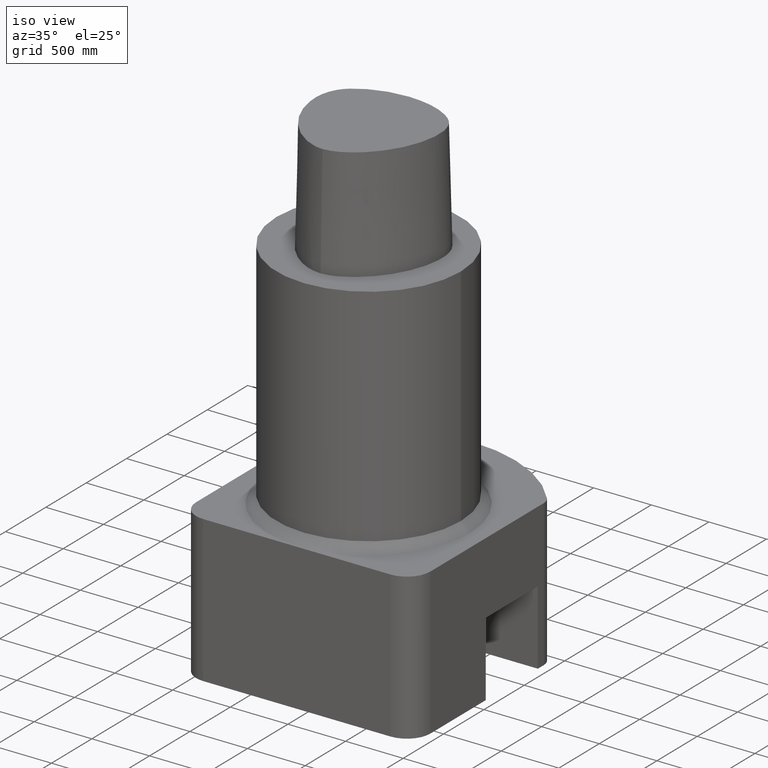
[diagram: clean part render]
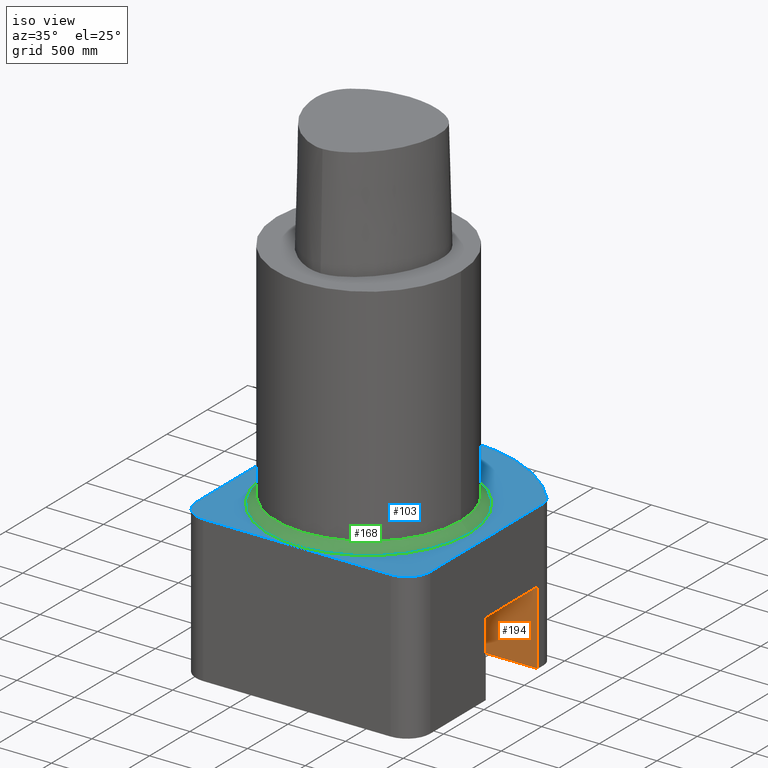
[diagram: same view with three faces highlighted in distinct colors, each labeled with its STEP entity id]
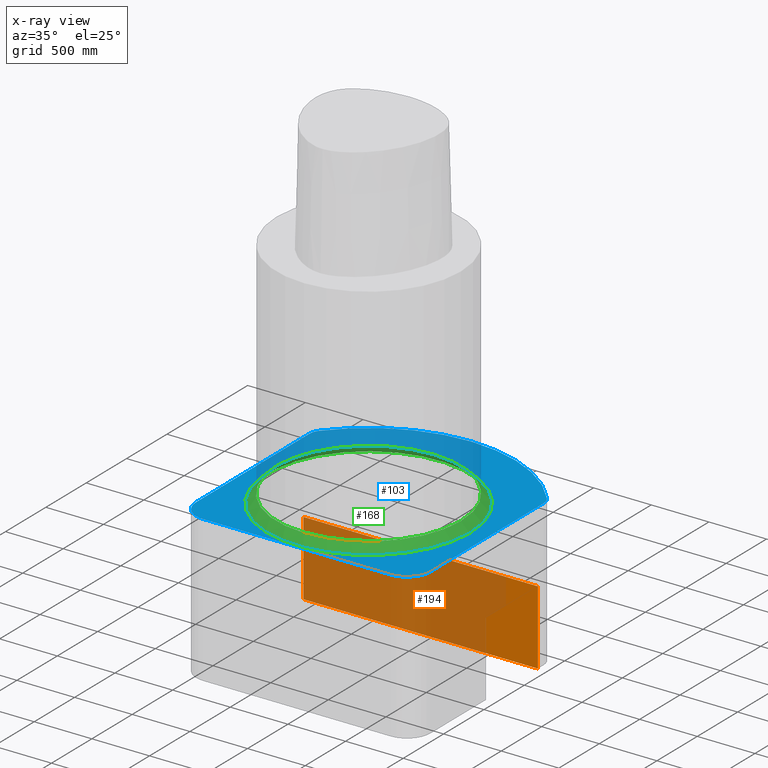
[diagram: x-ray of the same camera — body ghosted, the three highlighted faces saturated]
A machine part, iso view with three faces highlighted in distinct colors.
The next image is the same camera in x-ray (body ghosted, the three faces saturated) — at least one of them is partly hidden behind the body in this view.
Their STEP definitions:

[orange] entity #194 — the highlighted planar face has unit normal (-0, 1, -0).
#144=EDGE_CURVE('Unnamed[1]',#291,#348,#349,.T.);
#154=EDGE_CURVE('Unnamed[1]',#362,#291,#363,.T.);
#194=ADVANCED_FACE('Unnamed[1]',(#415),#416,.F.);
#222=EDGE_CURVE('Unnamed[1]',#348,#327,#451,.T.);
#232=EDGE_CURVE('Unnamed[1]',#327,#362,#461,.T.);
#291=VERTEX_POINT('',#522);
#327=VERTEX_POINT('',#576);
#348=VERTEX_POINT('',#607);
#349=LINE('',#608,#609);
#362=VERTEX_POINT('',#627);
#363=LINE('',#628,#629);
#415=FACE_OUTER_BOUND('',#732,.T.);
#416=PLANE('',#733);
#451=LINE('',#854,#855);
#461=LINE('',#903,#904);
#522=CARTESIAN_POINT('',(39.9999999999996,25.4,-130.0));
#576=CARTESIAN_POINT('',(-40.0,25.3999999999998,-104.6));
#607=CARTESIAN_POINT('',(-40.0,25.3999999999998,-130.0));
#608=CARTESIAN_POINT('',(12.5,25.3999999999999,-130.0));
#609=VECTOR('',#1082,1.0);
#627=CARTESIAN_POINT('',(39.9999999999996,25.4,-104.6));
#628=CARTESIAN_POINT('',(39.9999999999996,25.4,-256.829591219622));
#629=VECTOR('',#1100,1.0);
#732=EDGE_LOOP('',(#1163,#1164,#1165,#1166));
#733=AXIS2_PLACEMENT_3D('',#1167,#1168,#1169);
#854=CARTESIAN_POINT('',(-40.0,25.3999999999998,-256.829591219622));
#855=VECTOR('',#1213,1.0);
#903=CARTESIAN_POINT('',(39.9999999999996,25.4,-104.6));
#904=VECTOR('',#1216,1.0);
#1082=DIRECTION('',(-1.0,-2.65847392316831E-015,-1.22464679914735E-016));
#1100=DIRECTION('',(1.22464679914735E-016,-6.12323399573677E-017,-1.0));
#1163=ORIENTED_EDGE('',*,*,#144,.F.);
#1164=ORIENTED_EDGE('',*,*,#154,.F.);
#1165=ORIENTED_EDGE('',*,*,#232,.F.);
#1166=ORIENTED_EDGE('',*,*,#222,.F.);
#1167=CARTESIAN_POINT('',(-1.91255217457137E-013,25.3999999999999,-256.829591219622));
#1168=DIRECTION('',(-2.65847392316831E-015,1.0,-6.1232339957368E-017));
#1169=DIRECTION('',(-1.0,-2.65847392316831E-015,-1.22464679914735E-016));
#1213=DIRECTION('',(-1.22464679914735E-016,6.12323399573677E-017,1.0));
#1216=DIRECTION('',(1.0,2.65847392316831E-015,1.22464679914735E-016));

[blue] entity #103 — the highlighted planar face has unit normal (-0, 0, 1).
#103=ADVANCED_FACE('Unnamed[1]',(#286,#287),#288,.T.);
#107=EDGE_CURVE('Unnamed[1]',#294,#295,#296,.T.);
#113=EDGE_CURVE('Unnamed[1]',#298,#305,#306,.T.);
#178=EDGE_CURVE('Unnamed[1]',#394,#351,#395,.T.);
#196=EDGE_CURVE('Unnamed[1]',#418,#418,#419,.T.);
#205=EDGE_CURVE('Unnamed[1]',#351,#314,#429,.T.);
#212=EDGE_CURVE('Unnamed[1]',#438,#394,#439,.T.);
#228=EDGE_CURVE('Unnamed[1]',#314,#298,#457,.T.);
#234=EDGE_CURVE('Unnamed[1]',#438,#295,#463,.T.);
#238=EDGE_CURVE('Unnamed[1]',#305,#294,#467,.T.);
#286=FACE_BOUND('',#516,.T.);
#287=FACE_OUTER_BOUND('',#517,.T.);
#288=PLANE('',#518);
#294=VERTEX_POINT('',#527);
#295=VERTEX_POINT('',#528);
#296=CIRCLE('',#529,5.0);
#298=VERTEX_POINT('',#532);
#305=VERTEX_POINT('',#543);
#306=CIRCLE('',#544,8.0);
#314=VERTEX_POINT('',#557);
#351=VERTEX_POINT('',#612);
#394=VERTEX_POINT('',#669);
#395=LINE('',#670,#671);
#418=VERTEX_POINT('',#736);
#419=CIRCLE('',#737,34.5001016151384);
#429=CIRCLE('',#753,8.0);
#438=VERTEX_POINT('',#837);
#439=CIRCLE('',#838,5.0);
#457=LINE('',#881,#882);
#463=CIRCLE('',#907,50.0000000000004);
#467=LINE('',#914,#915);
#516=EDGE_LOOP('',(#1021));
#517=EDGE_LOOP('',(#1022,#1023,#1024,#1025,#1026,#1027,#1028,#1029));
#518=AXIS2_PLACEMENT_3D('',#1030,#1031,#1032);
#527=CARTESIAN_POINT('',(39.9999999999996,28.2842712474614,-80.0));
#528=CARTESIAN_POINT('',(38.8888888888904,31.4269680527325,-80.0));
#529=AXIS2_PLACEMENT_3D('',#1034,#1035,#1036);
#532=CARTESIAN_POINT('',(31.9999999999995,-35.0000000000004,-80.0));
#543=CARTESIAN_POINT('',(39.9999999999995,-27.0000000000003,-80.0));
#544=AXIS2_PLACEMENT_3D('',#1039,#1040,#1041);
#557=CARTESIAN_POINT('',(-32.0000000000009,-35.0000000000005,-80.0));
#612=CARTESIAN_POINT('',(-40.0000000000009,-27.0000000000005,-80.0));
#669=CARTESIAN_POINT('',(-40.0,28.2842712474617,-80.0));
#670=CARTESIAN_POINT('',(-40.0000000000004,0.32106781186599,-80.0));
#671=VECTOR('',#1150,1.0);
#736=CARTESIAN_POINT('',(34.5001016151384,-1.12361530485751E-014,-80.0));
#737=AXIS2_PLACEMENT_3D('',#1170,#1171,#1172);
#753=AXIS2_PLACEMENT_3D('',#1182,#1183,#1184);
#837=CARTESIAN_POINT('',(-38.8888888888895,31.426968052735,-80.0));
#838=AXIS2_PLACEMENT_3D('',#1191,#1192,#1193);
#881=CARTESIAN_POINT('',(21.1250254037844,-35.0000000000003,-80.0));
#882=VECTOR('',#1215,1.0);
#907=AXIS2_PLACEMENT_3D('',#1217,#1218,#1219);
#914=CARTESIAN_POINT('',(39.9999999999996,0.321067811865271,-80.0));
#915=VECTOR('',#1221,1.0);
#1021=ORIENTED_EDGE('',*,*,#196,.T.);
#1022=ORIENTED_EDGE('',*,*,#212,.T.);
#1023=ORIENTED_EDGE('',*,*,#178,.T.);
#1024=ORIENTED_EDGE('',*,*,#205,.T.);
#1025=ORIENTED_EDGE('',*,*,#228,.T.);
#1026=ORIENTED_EDGE('',*,*,#113,.T.);
#1027=ORIENTED_EDGE('',*,*,#238,.T.);
#1028=ORIENTED_EDGE('',*,*,#107,.T.);
#1029=ORIENTED_EDGE('',*,*,#234,.F.);
#1030=CARTESIAN_POINT('',(42.2500508075694,-1.26597956193848E-014,-80.0));
#1031=DIRECTION('',(-1.22464679914735E-016,6.12323399573677E-017,1.0));
#1032=DIRECTION('',(-1.0,1.83697019872103E-016,-1.22464679914735E-016));
#1034=CARTESIAN_POINT('',(34.9999999999996,28.2842712474614,-80.0));
#1035=DIRECTION('',(-1.22464679914735E-016,6.12323399573677E-017,1.0));
#1036=DIRECTION('',(3.06161699786838E-016,1.0,-6.12323399573676E-017));
#1039=CARTESIAN_POINT('',(31.9999999999995,-27.0000000000004,-80.0));
#1040=DIRECTION('',(-1.22464679914735E-016,6.12323399573677E-017,1.0));
#1041=DIRECTION('',(3.06161699786838E-016,1.0,-6.12323399573677E-017));
#1150=DIRECTION('',(-1.71490361667889E-014,-1.0,6.12323399573656E-017));
#1170=CARTESIAN_POINT('',(9.79717439317882E-015,-4.89858719658942E-015,-80.0));
#1171=DIRECTION('',(1.22464679914735E-016,-6.12323399573677E-017,-1.0));
#1172=DIRECTION('',(1.0,-1.83697019872103E-016,1.22464679914735E-016));
#1182=CARTESIAN_POINT('',(-32.0000000000009,-27.0000000000005,-80.0));
#1183=DIRECTION('',(-1.22464679914735E-016,6.12323399573677E-017,1.0));
#1184=DIRECTION('',(3.06161699786838E-016,1.0,-6.12323399573677E-017));
#1191=CARTESIAN_POINT('',(-35.0000000000004,28.2842712474617,-80.0));
#1192=DIRECTION('',(-1.22464679914735E-016,6.12323399573677E-017,1.0));
#1193=DIRECTION('',(3.06161699786838E-016,1.0,-6.12323399573676E-017));
#1215=DIRECTION('',(1.0,2.48083823922825E-015,1.22464679914735E-016));
#1217=CARTESIAN_POINT('',(9.79717439317882E-015,-4.89858719658942E-015,-80.0));
#1218=DIRECTION('',(1.22464679914735E-016,-6.12323399573677E-017,-1.0));
#1219=DIRECTION('',(1.0,-1.83697019872103E-016,1.22464679914735E-016));
#1221=DIRECTION('',(3.12222316439655E-016,1.0,-6.12323399573677E-017));

[green] entity #168 — the highlighted conical surface has half-angle 45 deg.
#168=ADVANCED_FACE('Unnamed[1]',(#379,#380),#381,.T.);
#196=EDGE_CURVE('Unnamed[1]',#418,#418,#419,.T.);
#240=EDGE_CURVE('Unnamed[1]',#469,#469,#470,.T.);
#379=FACE_BOUND('',#650,.T.);
#380=FACE_BOUND('',#651,.T.);
#381=CONICAL_SURFACE('',#652,33.0000508075692,0.785398163397448);
#418=VERTEX_POINT('',#736);
#419=CIRCLE('',#737,34.5001016151384);
#469=VERTEX_POINT('',#918);
#470=CIRCLE('',#919,31.5);
#650=EDGE_LOOP('',(#1124));
#651=EDGE_LOOP('',(#1125));
#652=AXIS2_PLACEMENT_3D('',#1126,#1127,#1128);
#736=CARTESIAN_POINT('',(34.5001016151384,-1.12361530485751E-014,-80.0));
#737=AXIS2_PLACEMENT_3D('',#1170,#1171,#1172);
#918=CARTESIAN_POINT('',(31.5,-1.05013400805559E-014,-76.9998983848616));
#919=AXIS2_PLACEMENT_3D('',#1222,#1223,#1224);
#1124=ORIENTED_EDGE('',*,*,#196,.F.);
#1125=ORIENTED_EDGE('',*,*,#240,.T.);
#1126=CARTESIAN_POINT('',(9.61347115117402E-015,-4.80673557558702E-015,-78.4999491924308));
#1127=DIRECTION('',(1.22464679914735E-016,-6.12323399573677E-017,-1.0));
#1128=DIRECTION('',(1.0,-1.83697019872103E-016,1.22464679914735E-016));
#1170=CARTESIAN_POINT('',(9.79717439317882E-015,-4.89858719658942E-015,-80.0));
#1171=DIRECTION('',(1.22464679914735E-016,-6.12323399573677E-017,-1.0));
#1172=DIRECTION('',(1.0,-1.83697019872103E-016,1.22464679914735E-016));
#1222=CARTESIAN_POINT('',(9.42976790916922E-015,-4.71488395458462E-015,-76.9998983848616));
#1223=DIRECTION('',(1.22464679914735E-016,-6.12323399573677E-017,-1.0));
#1224=DIRECTION('',(1.0,-1.83697019872103E-016,1.22464679914735E-016));